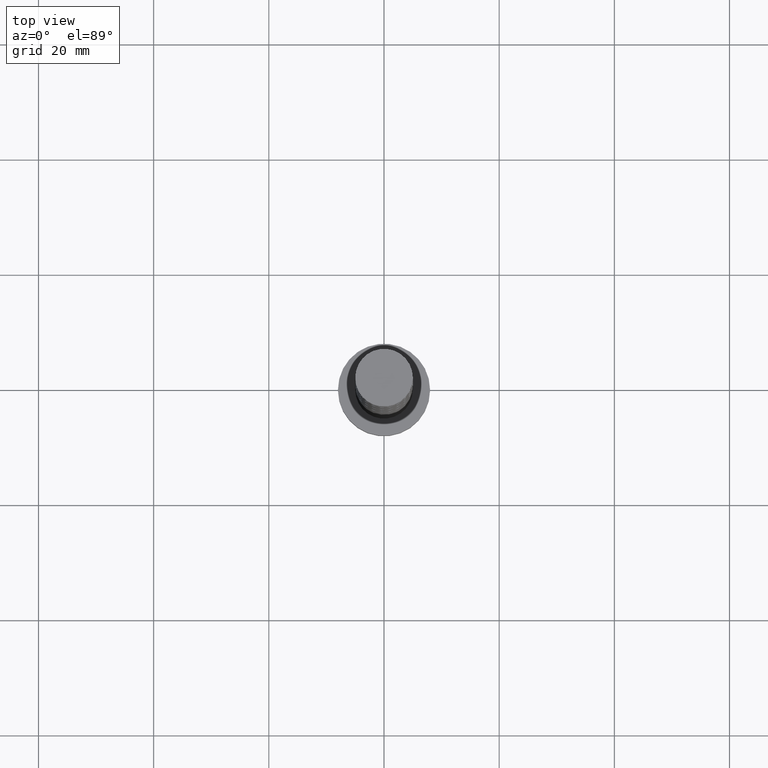
[diagram: clean part render]
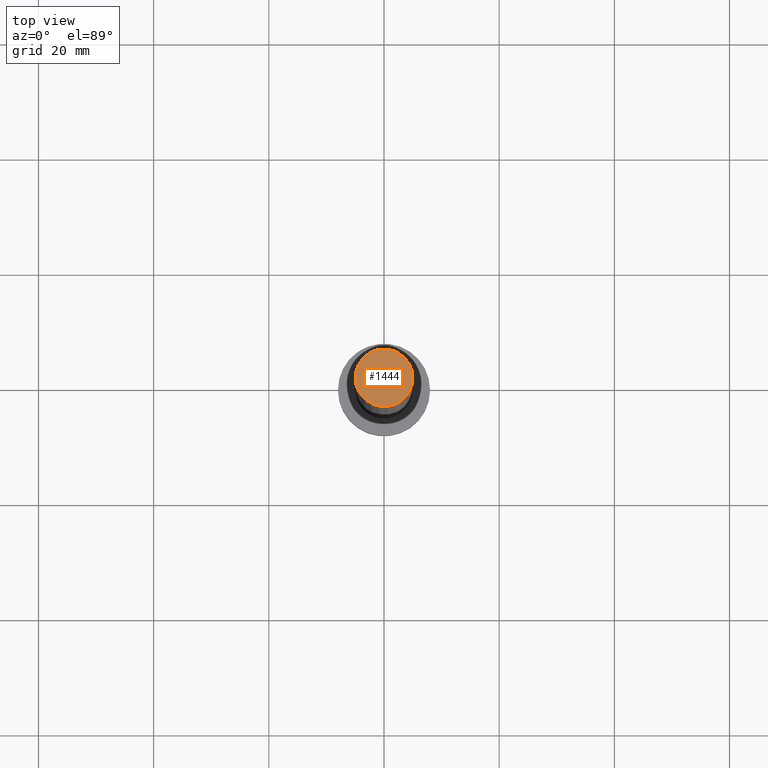
[diagram: same view with one face highlighted and labeled with its STEP entity id]
A machine part, top view. The second image highlights one B-rep face of the part: STEP entity #1444.
In plain terms, the highlighted planar face has unit normal (0, 0, 1).
Its self-contained STEP definition (entity closure, byte-faithful):
#1 = DIRECTION ( 'NONE',  ( 1.000000000000000000, 0.000000000000000000, -0.000000000000000000 ) ) ;
#12 = DIRECTION ( 'NONE',  ( 0.000000000000000000, 0.000000000000000000, 1.000000000000000000 ) ) ;
#46 = CARTESIAN_POINT ( 'NONE',  ( 5.000000000000000000, 6.123233995736766282E-16, 125.0000000000000000 ) ) ;
#94 = ORIENTED_EDGE ( 'NONE', *, *, #120, .T. ) ;
#120 = EDGE_CURVE ( 'NONE', #1001, #1525, #750, .T. ) ;
#190 = CIRCLE ( 'NONE', #785, 5.000000000000000000 ) ;
#237 = CARTESIAN_POINT ( 'NONE',  ( -5.000000000000000000, 0.000000000000000000, 125.0000000000000000 ) ) ;
#361 = AXIS2_PLACEMENT_3D ( 'NONE', #1140, #1147, #1502 ) ;
#384 = CARTESIAN_POINT ( 'NONE',  ( 0.000000000000000000, 0.000000000000000000, 125.0000000000000000 ) ) ;
#513 = CARTESIAN_POINT ( 'NONE',  ( 0.000000000000000000, 0.000000000000000000, 125.0000000000000000 ) ) ;
#580 = ORIENTED_EDGE ( 'NONE', *, *, #1394, .T. ) ;
#669 = EDGE_LOOP ( 'NONE', ( #580, #94 ) ) ;
#750 = CIRCLE ( 'NONE', #361, 5.000000000000000000 ) ;
#785 = AXIS2_PLACEMENT_3D ( 'NONE', #384, #1335, #1242 ) ;
#858 = PLANE ( 'NONE',  #1562 ) ;
#874 = FACE_OUTER_BOUND ( 'NONE', #669, .T. ) ;
#1001 = VERTEX_POINT ( 'NONE', #46 ) ;
#1140 = CARTESIAN_POINT ( 'NONE',  ( 0.000000000000000000, 0.000000000000000000, 125.0000000000000000 ) ) ;
#1147 = DIRECTION ( 'NONE',  ( 0.000000000000000000, 0.000000000000000000, 1.000000000000000000 ) ) ;
#1242 = DIRECTION ( 'NONE',  ( 1.000000000000000000, 0.000000000000000000, 0.000000000000000000 ) ) ;
#1335 = DIRECTION ( 'NONE',  ( 0.000000000000000000, 0.000000000000000000, 1.000000000000000000 ) ) ;
#1394 = EDGE_CURVE ( 'NONE', #1525, #1001, #190, .T. ) ;
#1444 = ADVANCED_FACE ( 'NONE', ( #874 ), #858, .T. ) ;
#1502 = DIRECTION ( 'NONE',  ( 1.000000000000000000, 0.000000000000000000, 0.000000000000000000 ) ) ;
#1525 = VERTEX_POINT ( 'NONE', #237 ) ;
#1562 = AXIS2_PLACEMENT_3D ( 'NONE', #513, #12, #1 ) ;